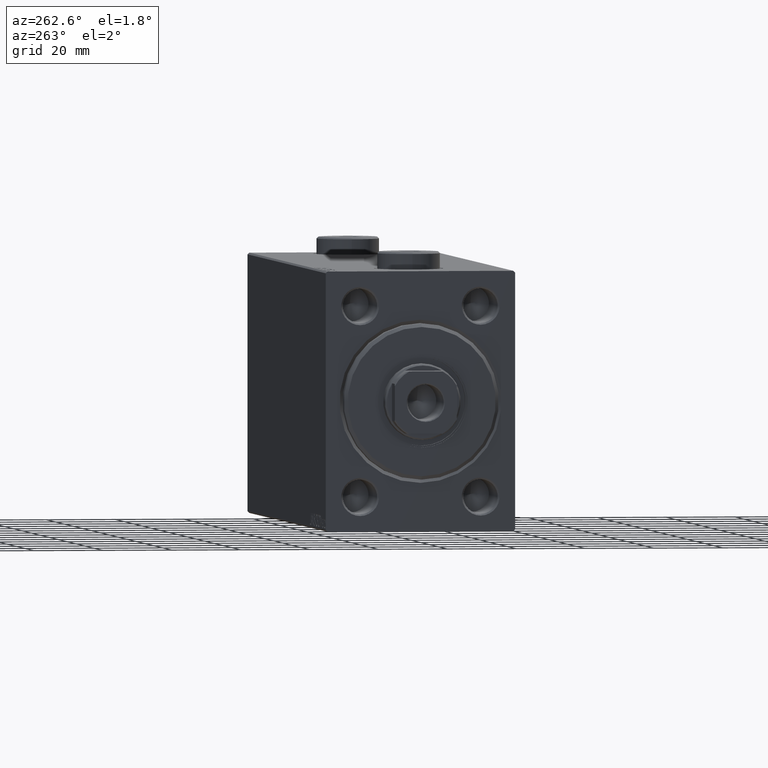
[diagram: clean part render]
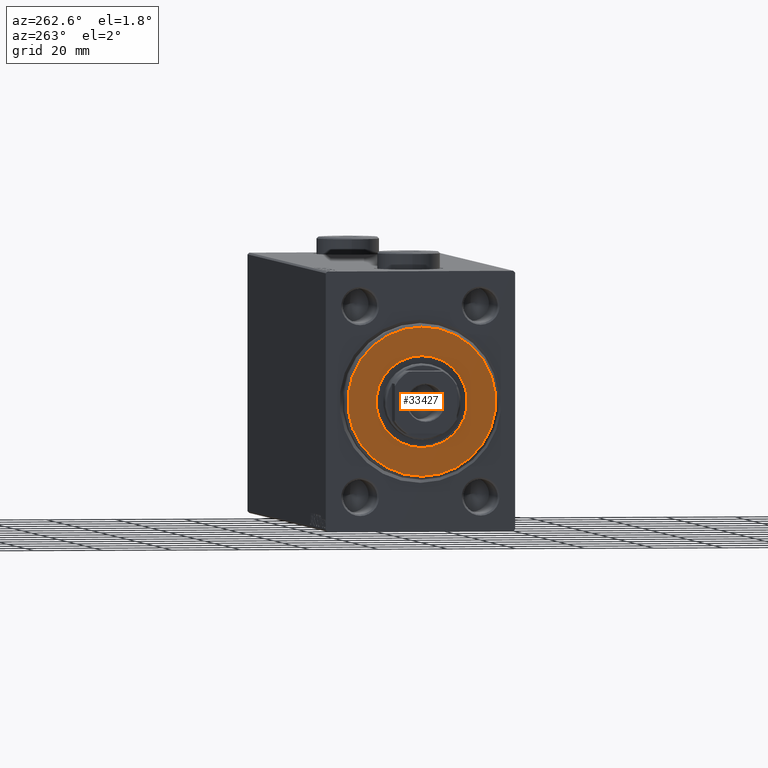
[diagram: same view with one face highlighted and labeled with its STEP entity id]
A machine part, auxiliary view. The second image highlights one B-rep face of the part: STEP entity #33427.
In plain terms, the highlighted planar face has unit normal (-1, 0, 0).
Its self-contained STEP definition (entity closure, byte-faithful):
#208 = DIRECTION ( 'NONE',  ( 1.000000000000000000, -0.000000000000000000, 0.000000000000000000 ) ) ;
#560 = CARTESIAN_POINT ( 'NONE',  ( 3.000000000000000000, 0.000000000000000000, 0.000000000000000000 ) ) ;
#1215 = DIRECTION ( 'NONE',  ( 1.000000000000000000, 0.000000000000000000, 0.000000000000000000 ) ) ;
#1992 = EDGE_LOOP ( 'NONE', ( #2543, #16131 ) ) ;
#2543 = ORIENTED_EDGE ( 'NONE', *, *, #8739, .T. ) ;
#2811 = CARTESIAN_POINT ( 'NONE',  ( 3.000000000000000000, 0.000000000000000000, -13.25000000000000178 ) ) ;
#3463 = VERTEX_POINT ( 'NONE', #2811 ) ;
#4894 = DIRECTION ( 'NONE',  ( 0.000000000000000000, 0.000000000000000000, -1.000000000000000000 ) ) ;
#5291 = EDGE_CURVE ( 'NONE', #3463, #18333, #18627, .T. ) ;
#5386 = FACE_OUTER_BOUND ( 'NONE', #1992, .T. ) ;
#5668 = EDGE_CURVE ( 'NONE', #6426, #13375, #33354, .T. ) ;
#5957 = CARTESIAN_POINT ( 'NONE',  ( 3.000000000000000000, 2.694222958124177598E-15, -21.50000000000000355 ) ) ;
#6426 = VERTEX_POINT ( 'NONE', #5957 ) ;
#6852 = AXIS2_PLACEMENT_3D ( 'NONE', #25640, #1215, #4894 ) ;
#8207 = CARTESIAN_POINT ( 'NONE',  ( 3.000000000000000000, 0.000000000000000000, 0.000000000000000000 ) ) ;
#8739 = EDGE_CURVE ( 'NONE', #13375, #6426, #14938, .T. ) ;
#10352 = DIRECTION ( 'NONE',  ( 0.000000000000000000, 0.000000000000000000, -1.000000000000000000 ) ) ;
#11403 = DIRECTION ( 'NONE',  ( 0.000000000000000000, 0.000000000000000000, -1.000000000000000000 ) ) ;
#13375 = VERTEX_POINT ( 'NONE', #44954 ) ;
#14617 = DIRECTION ( 'NONE',  ( 0.000000000000000000, 0.000000000000000000, -1.000000000000000000 ) ) ;
#14938 = CIRCLE ( 'NONE', #42184, 21.50000000000000355 ) ;
#16131 = ORIENTED_EDGE ( 'NONE', *, *, #5668, .T. ) ;
#18333 = VERTEX_POINT ( 'NONE', #28567 ) ;
#18627 = CIRCLE ( 'NONE', #6852, 13.25000000000000178 ) ;
#19529 = EDGE_CURVE ( 'NONE', #18333, #3463, #30712, .T. ) ;
#20578 = ORIENTED_EDGE ( 'NONE', *, *, #5291, .F. ) ;
#24805 = AXIS2_PLACEMENT_3D ( 'NONE', #8207, #25723, #43468 ) ;
#25640 = CARTESIAN_POINT ( 'NONE',  ( 3.000000000000000000, 0.000000000000000000, 0.000000000000000000 ) ) ;
#25723 = DIRECTION ( 'NONE',  ( 1.000000000000000000, 0.000000000000000000, 0.000000000000000000 ) ) ;
#26228 = EDGE_LOOP ( 'NONE', ( #20578, #36391 ) ) ;
#28318 = CARTESIAN_POINT ( 'NONE',  ( 3.000000000000000000, 0.000000000000000000, 0.000000000000000000 ) ) ;
#28567 = CARTESIAN_POINT ( 'NONE',  ( 3.000000000000000000, 1.622657008870243277E-15, 13.25000000000000178 ) ) ;
#30712 = CIRCLE ( 'NONE', #24805, 13.25000000000000178 ) ;
#31906 = AXIS2_PLACEMENT_3D ( 'NONE', #28318, #208, #10352 ) ;
#32613 = CARTESIAN_POINT ( 'NONE',  ( 3.000000000000000000, 0.000000000000000000, 0.000000000000000000 ) ) ;
#33354 = CIRCLE ( 'NONE', #31906, 21.50000000000000355 ) ;
#33427 = ADVANCED_FACE ( 'NONE', ( #5386, #43645 ), #39530, .T. ) ;
#36391 = ORIENTED_EDGE ( 'NONE', *, *, #19529, .F. ) ;
#39530 = PLANE ( 'NONE',  #45270 ) ;
#42184 = AXIS2_PLACEMENT_3D ( 'NONE', #560, #42727, #14617 ) ;
#42727 = DIRECTION ( 'NONE',  ( 1.000000000000000000, -0.000000000000000000, 0.000000000000000000 ) ) ;
#42973 = DIRECTION ( 'NONE',  ( 1.000000000000000000, -0.000000000000000000, 0.000000000000000000 ) ) ;
#43468 = DIRECTION ( 'NONE',  ( 0.000000000000000000, 0.000000000000000000, -1.000000000000000000 ) ) ;
#43645 = FACE_BOUND ( 'NONE', #26228, .T. ) ;
#44954 = CARTESIAN_POINT ( 'NONE',  ( 3.000000000000000000, 0.000000000000000000, 21.50000000000000355 ) ) ;
#45270 = AXIS2_PLACEMENT_3D ( 'NONE', #32613, #42973, #11403 ) ;